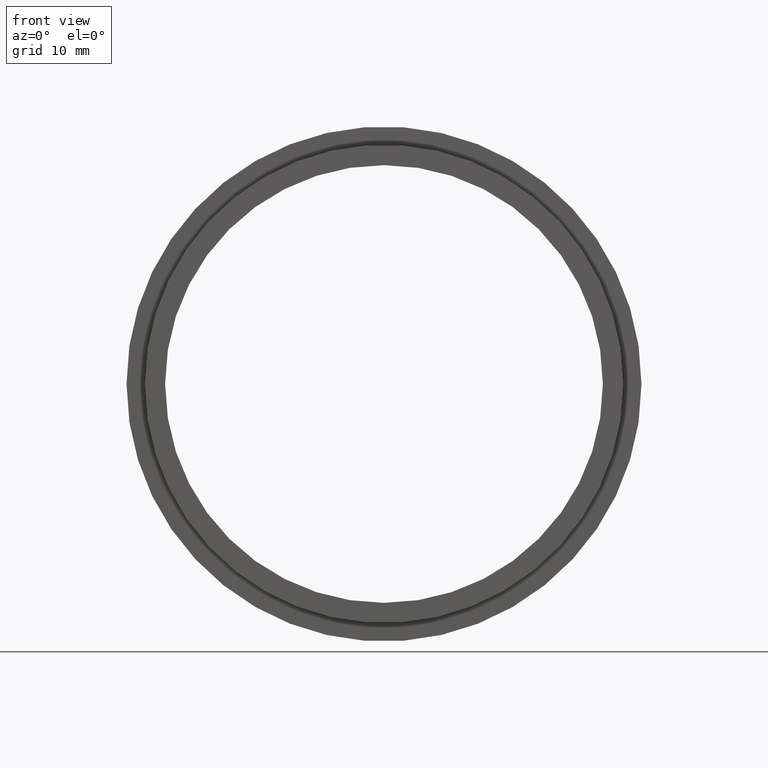
[diagram: clean part render]
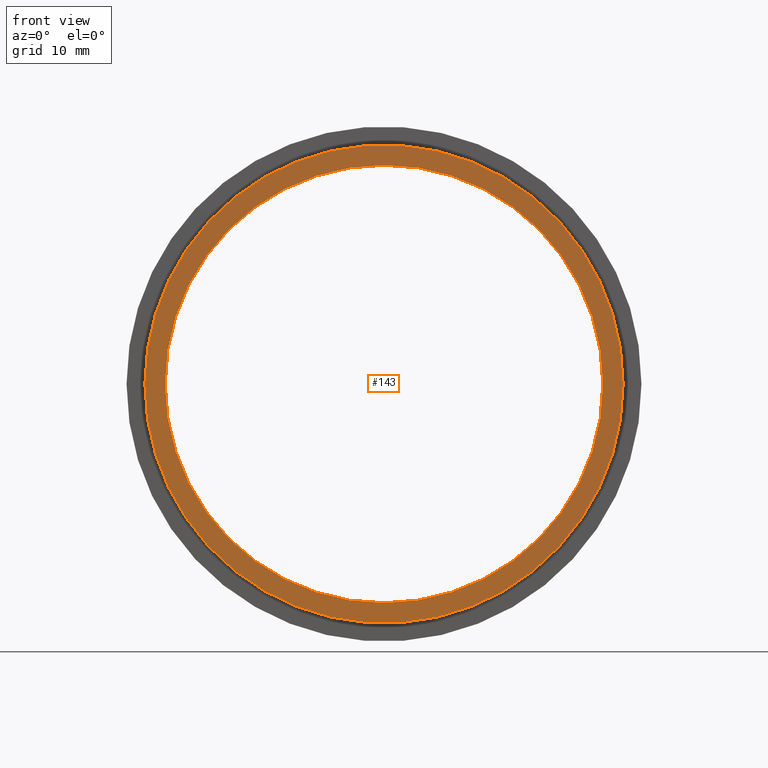
[diagram: same view with one face highlighted and labeled with its STEP entity id]
A machine part, front view. The second image highlights one B-rep face of the part: STEP entity #143.
In plain terms, the highlighted planar face has unit normal (-0, 1, 0).
Its self-contained STEP definition (entity closure, byte-faithful):
#8 = ORIENTED_EDGE ( 'NONE', *, *, #107, .T. ) ;
#9 = ORIENTED_EDGE ( 'NONE', *, *, #33, .T. ) ;
#18 = CIRCLE ( 'NONE', #228, 23.79999999999999700 ) ;
#19 = CARTESIAN_POINT ( 'NONE',  ( 26.00000000000000000, -0.5454644111196653700, 3.184081677783117800E-015 ) ) ;
#21 = AXIS2_PLACEMENT_3D ( 'NONE', #89, #355, #155 ) ;
#23 = CARTESIAN_POINT ( 'NONE',  ( 2.134740942951285500E-015, -0.5454644111196684800, 0.0000000000000000000 ) ) ;
#33 = EDGE_CURVE ( 'NONE', #429, #118, #18, .T. ) ;
#58 = DIRECTION ( 'NONE',  ( -1.000000000000000000, -1.229977254500362400E-016, 0.0000000000000000000 ) ) ;
#86 = PLANE ( 'NONE',  #21 ) ;
#89 = CARTESIAN_POINT ( 'NONE',  ( 23.80000000000000100, -0.5454644111196634800, 0.0000000000000000000 ) ) ;
#107 = EDGE_CURVE ( 'NONE', #118, #429, #386, .T. ) ;
#117 = CARTESIAN_POINT ( 'NONE',  ( 23.80000000000000100, -0.5454644111196655900, 2.914659381970700800E-015 ) ) ;
#118 = VERTEX_POINT ( 'NONE', #117 ) ;
#143 = ADVANCED_FACE ( 'NONE', ( #269, #185 ), #86, .F. ) ;
#155 = DIRECTION ( 'NONE',  ( -1.000000000000000000, -1.224646799147351000E-016, 0.0000000000000000000 ) ) ;
#159 = ORIENTED_EDGE ( 'NONE', *, *, #187, .F. ) ;
#170 = DIRECTION ( 'NONE',  ( -1.000000000000000000, -1.209302423156908900E-016, 0.0000000000000000000 ) ) ;
#175 = AXIS2_PLACEMENT_3D ( 'NONE', #23, #388, #387 ) ;
#185 = FACE_BOUND ( 'NONE', #389, .T. ) ;
#187 = EDGE_CURVE ( 'NONE', #208, #336, #350, .T. ) ;
#198 = CIRCLE ( 'NONE', #207, 25.99999999999999600 ) ;
#199 = DIRECTION ( 'NONE',  ( -1.224646799147351000E-016, 1.000000000000000000, -0.0000000000000000000 ) ) ;
#207 = AXIS2_PLACEMENT_3D ( 'NONE', #399, #373, #170 ) ;
#208 = VERTEX_POINT ( 'NONE', #257 ) ;
#228 = AXIS2_PLACEMENT_3D ( 'NONE', #365, #199, #400 ) ;
#240 = CARTESIAN_POINT ( 'NONE',  ( -23.79999999999999400, -0.5454644111196714800, 0.0000000000000000000 ) ) ;
#242 = CARTESIAN_POINT ( 'NONE',  ( 2.134740942951285500E-015, -0.5454644111196684800, 0.0000000000000000000 ) ) ;
#257 = CARTESIAN_POINT ( 'NONE',  ( -25.99999999999999300, -0.5454644111196717000, 0.0000000000000000000 ) ) ;
#261 = DIRECTION ( 'NONE',  ( -1.224646799147351000E-016, 1.000000000000000000, -0.0000000000000000000 ) ) ;
#269 = FACE_OUTER_BOUND ( 'NONE', #271, .T. ) ;
#271 = EDGE_LOOP ( 'NONE', ( #159, #301 ) ) ;
#301 = ORIENTED_EDGE ( 'NONE', *, *, #396, .F. ) ;
#336 = VERTEX_POINT ( 'NONE', #19 ) ;
#350 = CIRCLE ( 'NONE', #175, 25.99999999999999600 ) ;
#355 = DIRECTION ( 'NONE',  ( -1.224646799147351000E-016, 1.000000000000000000, 0.0000000000000000000 ) ) ;
#365 = CARTESIAN_POINT ( 'NONE',  ( 2.134740942951285500E-015, -0.5454644111196684800, 0.0000000000000000000 ) ) ;
#373 = DIRECTION ( 'NONE',  ( -1.224646799147351000E-016, 1.000000000000000000, -0.0000000000000000000 ) ) ;
#386 = CIRCLE ( 'NONE', #432, 23.79999999999999700 ) ;
#387 = DIRECTION ( 'NONE',  ( -1.000000000000000000, -1.209302423156908900E-016, 0.0000000000000000000 ) ) ;
#388 = DIRECTION ( 'NONE',  ( -1.224646799147351000E-016, 1.000000000000000000, -0.0000000000000000000 ) ) ;
#389 = EDGE_LOOP ( 'NONE', ( #9, #8 ) ) ;
#396 = EDGE_CURVE ( 'NONE', #336, #208, #198, .T. ) ;
#399 = CARTESIAN_POINT ( 'NONE',  ( 2.134740942951285500E-015, -0.5454644111196684800, 0.0000000000000000000 ) ) ;
#400 = DIRECTION ( 'NONE',  ( -1.000000000000000000, -1.229977254500362400E-016, 0.0000000000000000000 ) ) ;
#429 = VERTEX_POINT ( 'NONE', #240 ) ;
#432 = AXIS2_PLACEMENT_3D ( 'NONE', #242, #261, #58 ) ;